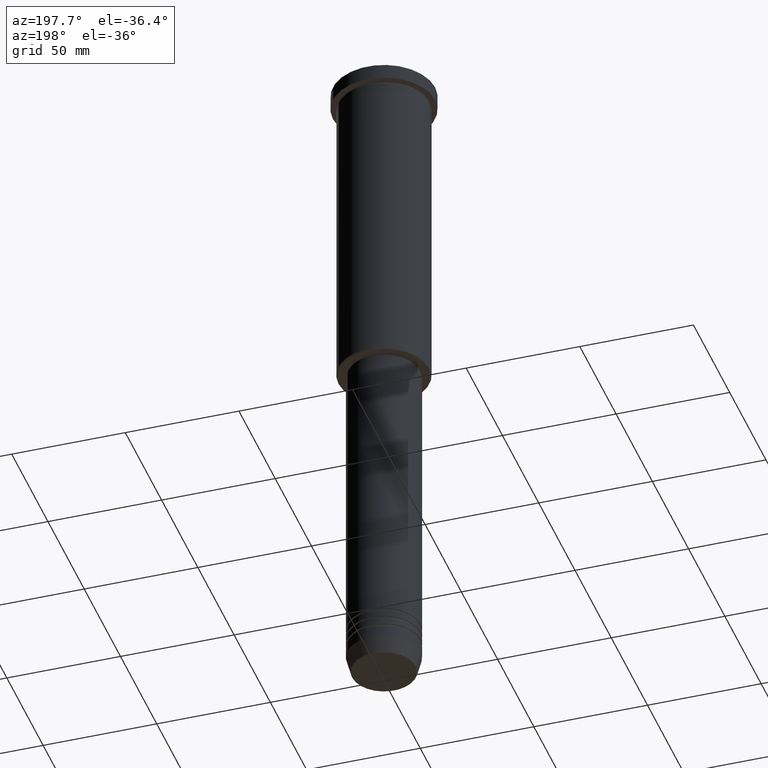
[diagram: clean part render]
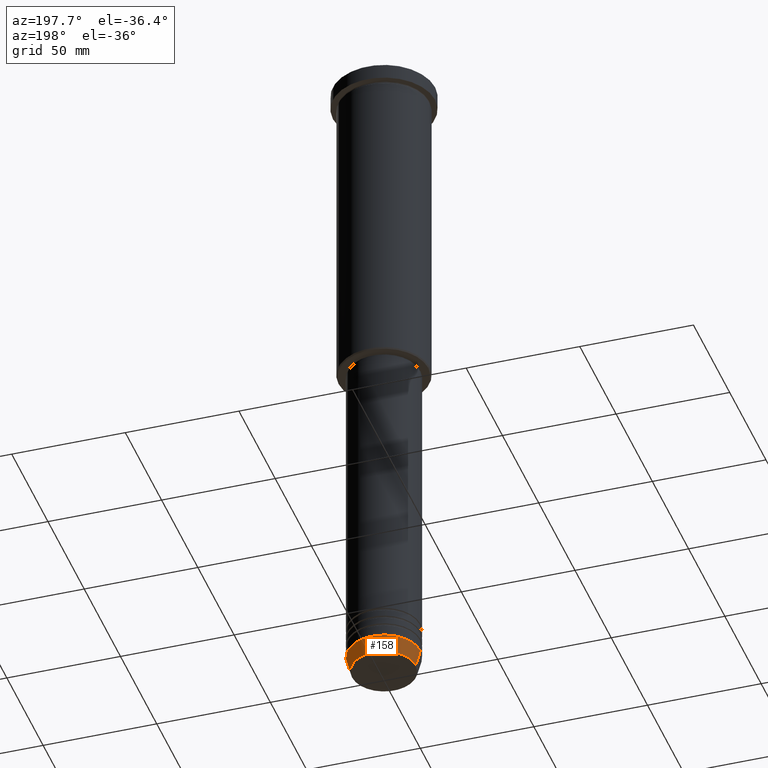
[diagram: same view with one face highlighted and labeled with its STEP entity id]
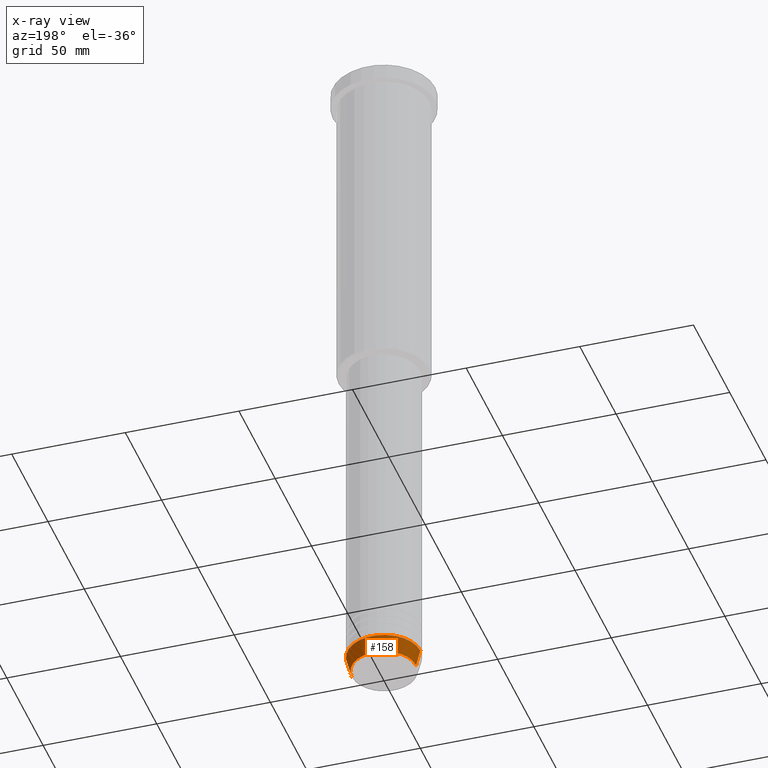
[diagram: x-ray of the same camera — body ghosted, the highlighted face saturated]
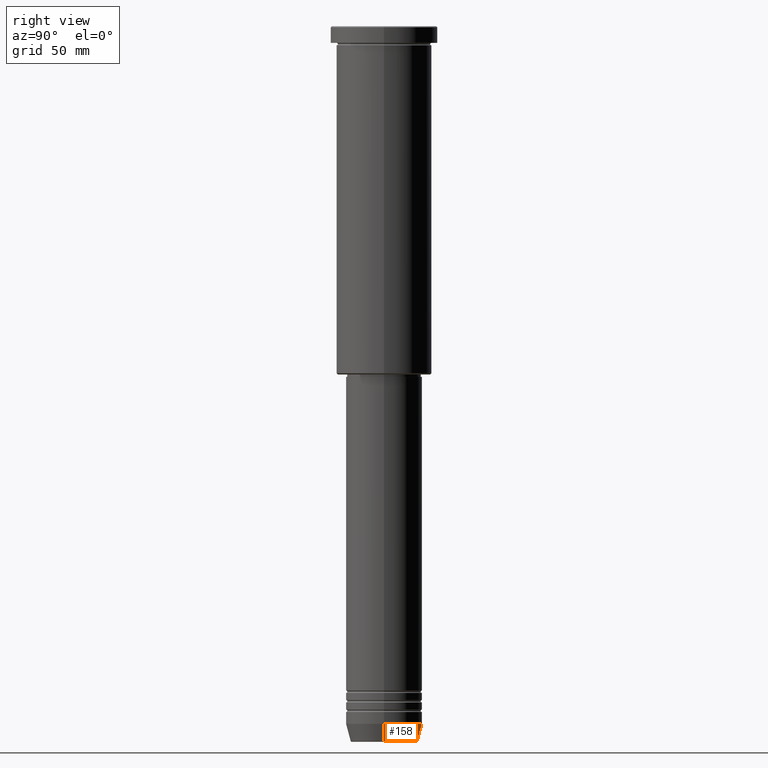
[diagram: same view with one face highlighted and labeled with its STEP entity id]
A machine part, auxiliary view. The second image highlights one B-rep face of the part: STEP entity #158.
The next image is the same camera in x-ray: the body ghosted, the highlighted face saturated — about 0% of this face is hidden behind the body in this view.
A second angle (right view) of the same face is appended — the face is thin or edge-on in the first view.
In plain terms, the highlighted conical surface has half-angle 15 deg.
Its self-contained STEP definition (entity closure, byte-faithful):
#51 = DIRECTION ( 'NONE',  ( -0.000000000000000000, -0.000000000000000000, 1.000000000000000000 ) ) ;
#113 = VERTEX_POINT ( 'NONE', #1114 ) ;
#158 = ADVANCED_FACE ( 'NONE', ( #211 ), #298, .T. ) ;
#211 = FACE_OUTER_BOUND ( 'NONE', #1175, .T. ) ;
#238 = LINE ( 'NONE', #976, #1010 ) ;
#298 = CONICAL_SURFACE ( 'NONE', #638, 16.00000000000000000, 0.2617993877991500740 ) ;
#303 = LINE ( 'NONE', #680, #686 ) ;
#345 = DIRECTION ( 'NONE',  ( 1.000000000000000000, 0.000000000000000000, 0.000000000000000000 ) ) ;
#347 = EDGE_CURVE ( 'NONE', #113, #425, #709, .T. ) ;
#385 = CARTESIAN_POINT ( 'NONE',  ( 0.000000000000000000, 0.000000000000000000, -292.5000000000000000 ) ) ;
#425 = VERTEX_POINT ( 'NONE', #1052 ) ;
#440 = ORIENTED_EDGE ( 'NONE', *, *, #961, .F. ) ;
#447 = AXIS2_PLACEMENT_3D ( 'NONE', #1108, #1008, #345 ) ;
#492 = CARTESIAN_POINT ( 'NONE',  ( 0.000000000000000000, 0.000000000000000000, -292.5000000000000000 ) ) ;
#631 = VERTEX_POINT ( 'NONE', #880 ) ;
#638 = AXIS2_PLACEMENT_3D ( 'NONE', #492, #867, #1135 ) ;
#680 = CARTESIAN_POINT ( 'NONE',  ( 16.00000000000000000, 0.000000000000000000, -292.5000000000000000 ) ) ;
#686 = VECTOR ( 'NONE', #1045, 1000.000000000000000 ) ;
#709 = CIRCLE ( 'NONE', #447, 14.08968047592161632 ) ;
#714 = AXIS2_PLACEMENT_3D ( 'NONE', #385, #51, #1005 ) ;
#760 = EDGE_CURVE ( 'NONE', #631, #984, #1127, .T. ) ;
#830 = DIRECTION ( 'NONE',  ( -0.2588190451025213501, 3.169619151431772337E-17, 0.9659258262890680902 ) ) ;
#842 = EDGE_CURVE ( 'NONE', #425, #984, #238, .T. ) ;
#867 = DIRECTION ( 'NONE',  ( -0.000000000000000000, -0.000000000000000000, 1.000000000000000000 ) ) ;
#872 = ORIENTED_EDGE ( 'NONE', *, *, #347, .T. ) ;
#880 = CARTESIAN_POINT ( 'NONE',  ( 16.00000000000000000, 0.000000000000000000, -292.5000000000000000 ) ) ;
#924 = ORIENTED_EDGE ( 'NONE', *, *, #842, .T. ) ;
#961 = EDGE_CURVE ( 'NONE', #113, #631, #303, .T. ) ;
#976 = CARTESIAN_POINT ( 'NONE',  ( -16.00000000000000000, 1.959434878635765131E-15, -292.5000000000000000 ) ) ;
#984 = VERTEX_POINT ( 'NONE', #1035 ) ;
#1005 = DIRECTION ( 'NONE',  ( 1.000000000000000000, 0.000000000000000000, 0.000000000000000000 ) ) ;
#1008 = DIRECTION ( 'NONE',  ( -0.000000000000000000, -0.000000000000000000, 1.000000000000000000 ) ) ;
#1010 = VECTOR ( 'NONE', #830, 1000.000000000000000 ) ;
#1035 = CARTESIAN_POINT ( 'NONE',  ( -16.00000000000000000, 1.959434878635765131E-15, -292.5000000000000000 ) ) ;
#1045 = DIRECTION ( 'NONE',  ( 0.2588190451025213501, 0.000000000000000000, 0.9659258262890680902 ) ) ;
#1052 = CARTESIAN_POINT ( 'NONE',  ( -14.08968047592161632, 1.842461544110200874E-15, -299.6294095225512137 ) ) ;
#1092 = ORIENTED_EDGE ( 'NONE', *, *, #760, .F. ) ;
#1108 = CARTESIAN_POINT ( 'NONE',  ( 0.000000000000000000, 0.000000000000000000, -299.6294095225512137 ) ) ;
#1114 = CARTESIAN_POINT ( 'NONE',  ( 14.08968047592161632, 0.000000000000000000, -299.6294095225512137 ) ) ;
#1127 = CIRCLE ( 'NONE', #714, 16.00000000000000000 ) ;
#1135 = DIRECTION ( 'NONE',  ( 1.000000000000000000, 0.000000000000000000, 0.000000000000000000 ) ) ;
#1175 = EDGE_LOOP ( 'NONE', ( #872, #924, #1092, #440 ) ) ;